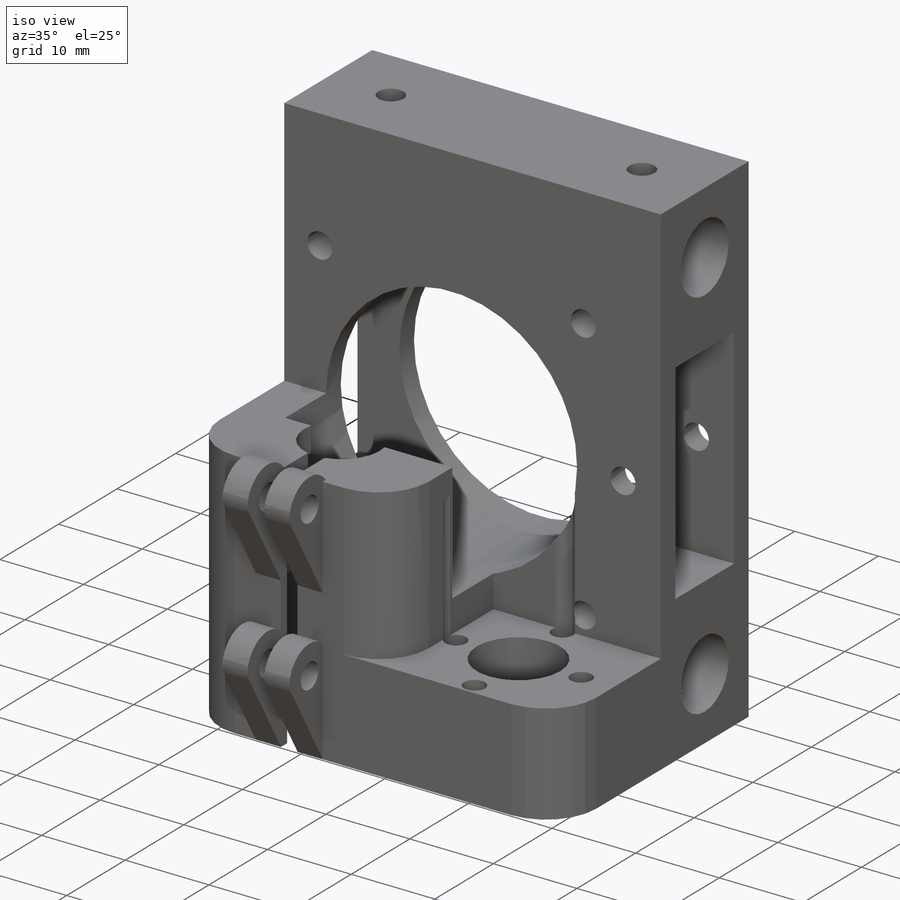
[diagram: iso view]
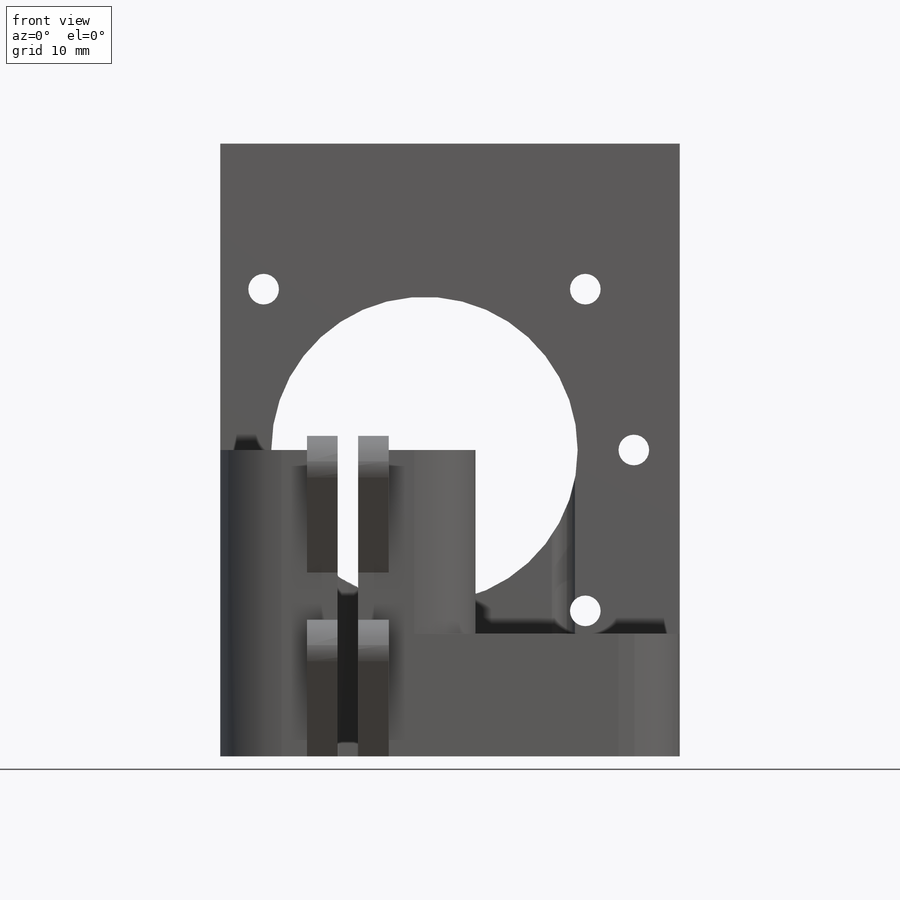
[diagram: front view]
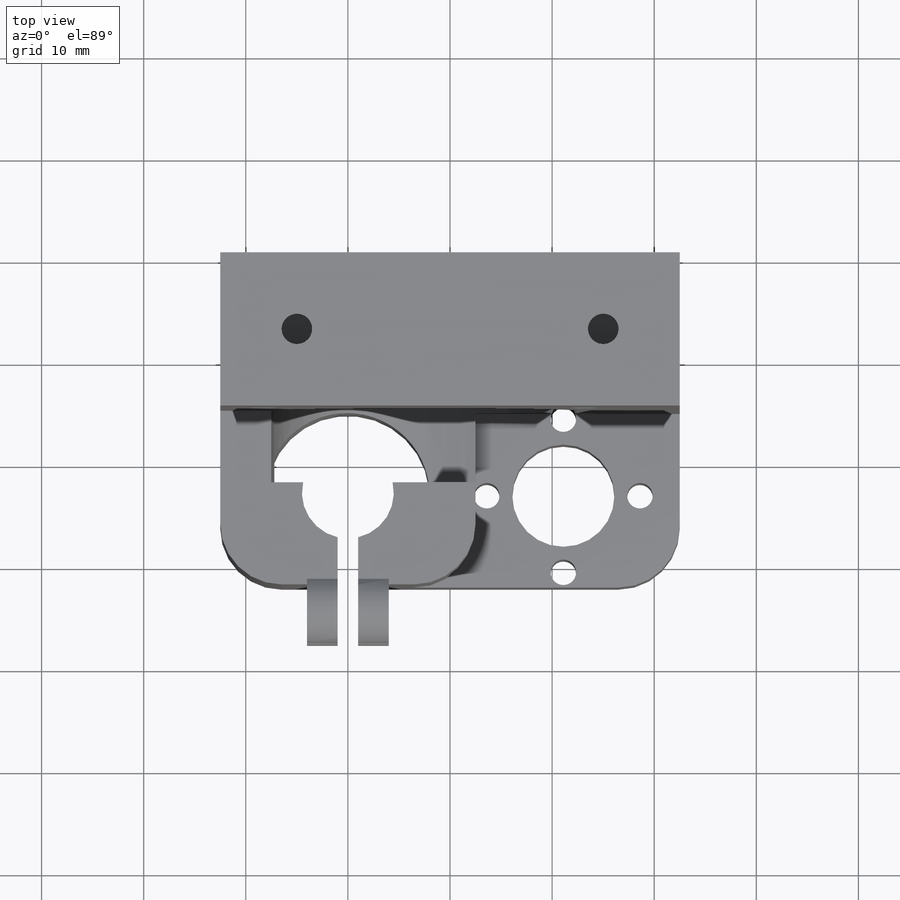
[diagram: top view]
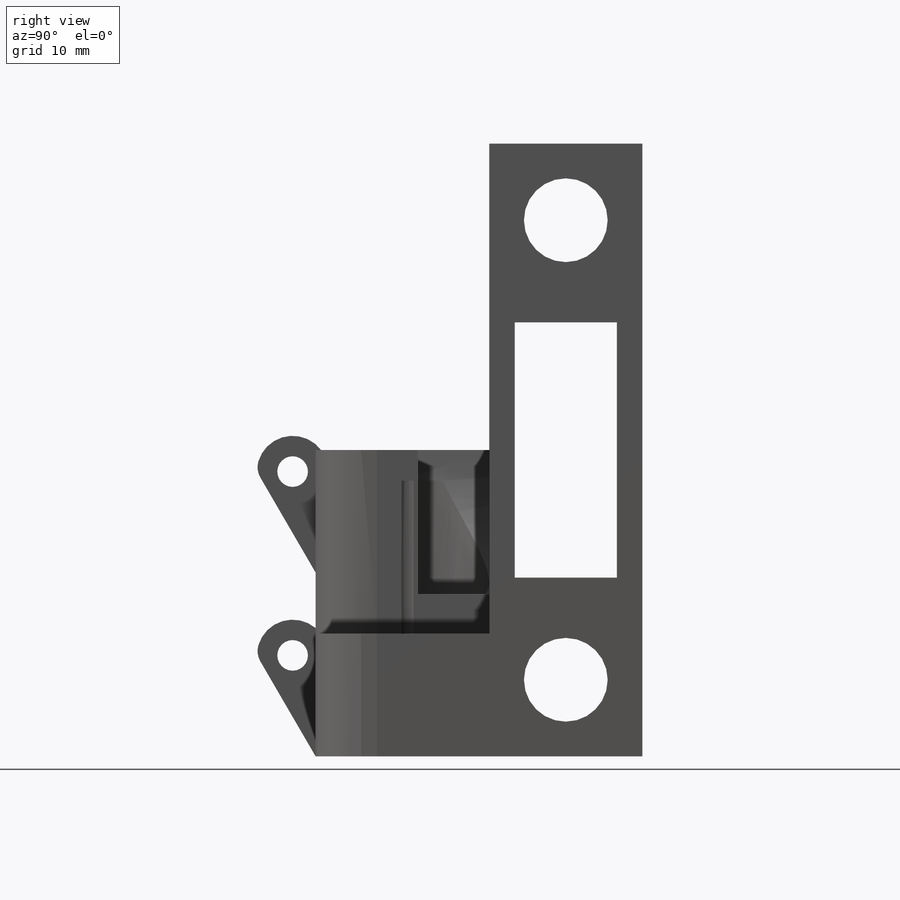
[diagram: right view]
SOLIDWORKS PART (.sldprt)
format: sldprt  version: not decoded by parser v0  size: 453,120 bytes
history: native  units: mm
features: sketch x13, cut_extrude x8, extrude x5, fillet x2, material x1 (+13 scaffold rows collapsed)
feature tree (42):
  scaffold x13  (default folders/planes/origin — collapsed)
  material  "Material <not specified>"
  sketch  "Sketch1"  dims[D1=45.0mm D2=60.0mm]
  extrude  "Boss-Extrude1"  Depth=15mm
  sketch  "Sketch2"  dims[D3=8.2mm D1=2.5mm D2=25.0mm D4=22.5mm]
  cut_extrude  "Cut-Extrude1"  [1 undecoded]
  sketch  "Sketch3"  dims[D1=17.0mm D2=12.0mm]
  extrude  "Boss-Extrude2"  [1 undecoded]
  sketch  "Sketch4"  dims[c1.D1=25.0mm c1.D2=25.0mm c2.D1=17.0mm]
  extrude  "Boss-Extrude3"  Depth=18mm
  sketch  "Sketch5"  dims[D1=2.0mm D2=30.0mm]
  cut_extrude  "Cut-Extrude2"  Depth=5mm
  sketch  "Sketch6"  dims[D1=9.0mm D2=4.0mm]
  cut_extrude  "Cut-Extrude3"  [1 undecoded]
  sketch  "Sketch7"  dims[c1.D1=16.0mm c1.D2=10.0mm c1.D4=2.5mm c1.D8=2.5mm c1.D3=21.1mm c1.D5=7.5mm c1.D6=32.5mm c2.D6=45.0deg c2.D7=7.5mm c2.D9=5.0mm c3.D9=45.0deg]
  cut_extrude  "Cut-Extrude4"  Depth=3mm
  sketch  "Sketch8"  dims[c1.D1=30.0mm c1.D2=3.0mm c1.D10=3.0mm c1.D3=15.75mm c1.D4=~22.022203mm c2.D4=45.0deg c2.D3=0.0mm c2.D5=31.5mm c2.D6=31.5mm c2.D7=20.0mm c2.D8=~22.273864mm c3.D8=45.0deg c3.D9=45.0mm c4.D9=45.0deg c4.D10=60.0mm c5.D10=45.0deg c6.D10=15.75mm c7.D10=45.0deg]
  cut_extrude  "Cut-Extrude5"  Depth=22mm
  fillet  "Fillet1"  Radius=6mm
  sketch  "Sketch9"  dims[D1=3.0mm D2=4.5mm]
  cut_extrude  "Cut-Extrude6"  [1 undecoded]
  sketch  "Sketch10"  dims[D1=3.0mm D2=15.0mm]
  cut_extrude  "Cut-Extrude7"  [1 undecoded]
  cut_extrude  "Cut-Extrude8"  [1 undecoded]
  sketch  "Sketch10<2>"
  sketch  "Sketch11"  dims[c1.D1=3.0mm c1.D2=~4.42774mm c1.D8=3.0mm c2.D2=2.0mm c2.D3=2.25mm c2.D4=10.0mm c2.D5=0.0mm c2.D7=18.0mm c2.D8=~1.062746mm c2.D6=2.0]
  extrude  "Boss-Extrude4"  Depth=3mm
  extrude  "Boss-Extrude6"  [1 undecoded]
  sketch  "Sketch11<2>"  dims[D1=3.0mm D19=2.0mm]
  fillet  "Fillet3"  Radius=2mm
decode coverage: 20 of 28 modeling features carry decoded parameters
note: ~ marks probable driven/reference dimensions
note: 7 parameter values undecoded
summary: no parameter record found for 7 features
note: suppression state not decoded; provenance and decode notes live in map.json
